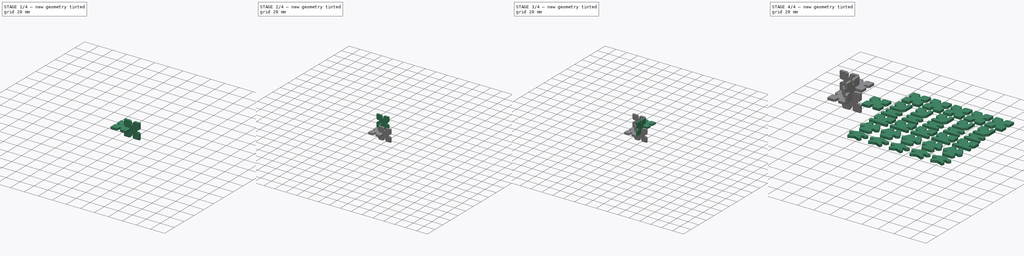
[diagram: build sequence overview — one tinted view per stage of 4, left to right]
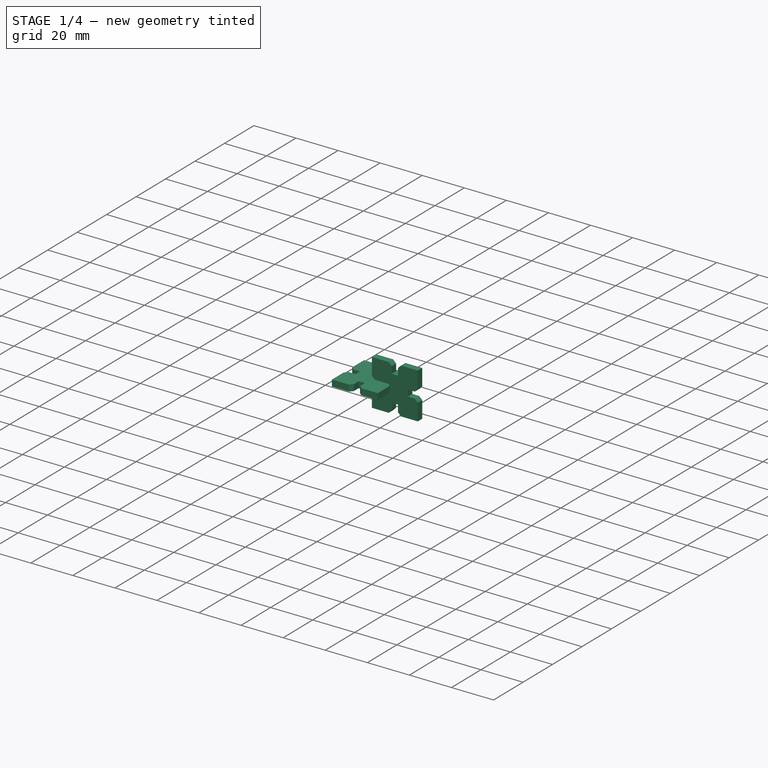
[diagram: stage 1 of 4 — iso view after this stage's code; geometry added in this stage tinted green]
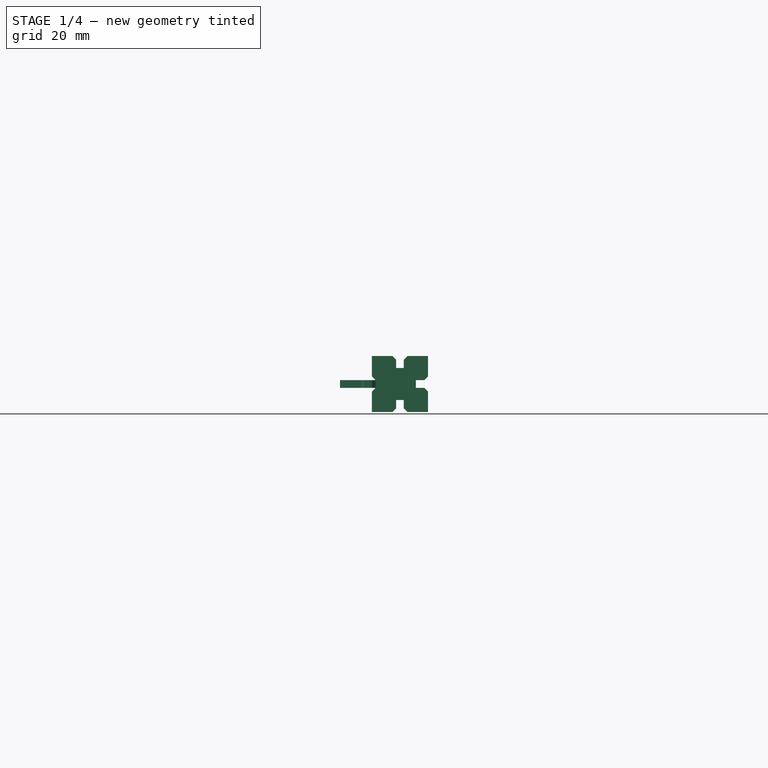
[diagram: stage 1 of 4 — front view after this stage's code; geometry added in this stage tinted green]
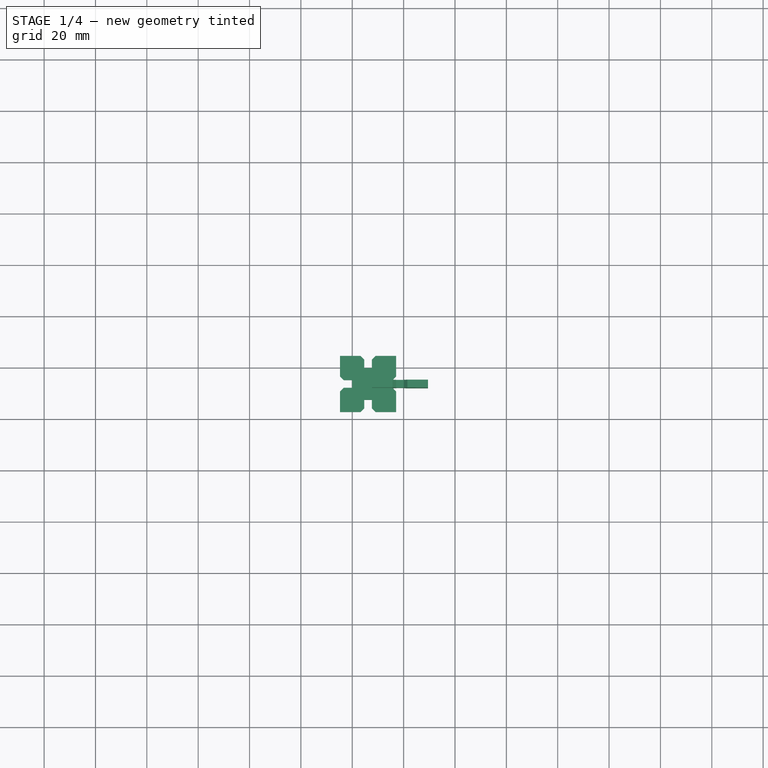
[diagram: stage 1 of 4 — top view after this stage's code; geometry added in this stage tinted green]
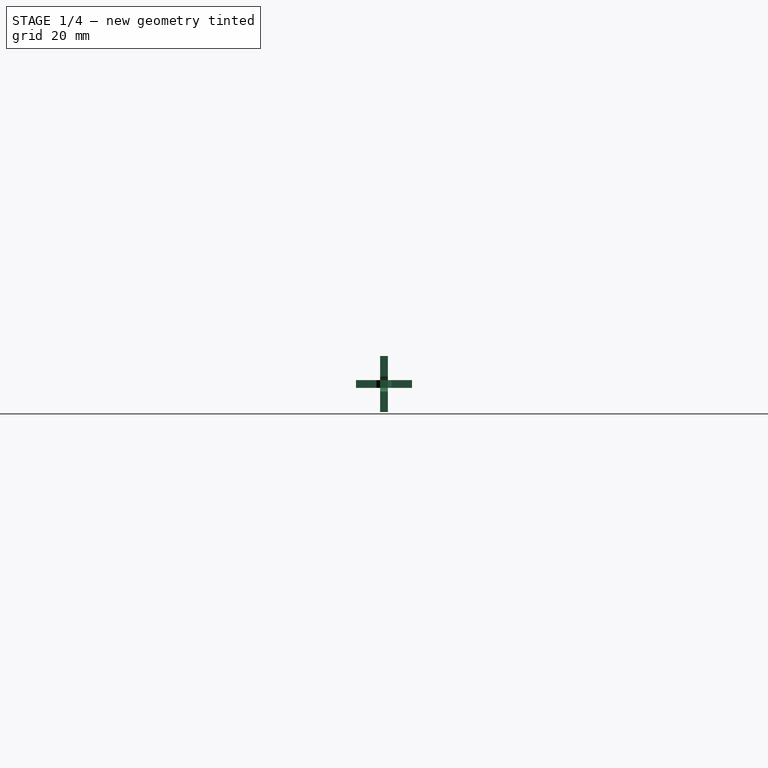
[diagram: stage 1 of 4 — right view after this stage's code; geometry added in this stage tinted green]
FCSTD DOCUMENT  (FreeCAD 0.18.3R)
Label: GIK
License: All rights reserved
LicenseURL: http://en.wikipedia.org/wiki/All_rights_reserved
objects: App::FeaturePython×10, Part::FeaturePython×7, Sketcher::SketchObject×2, Part::Extrusion×2, Spreadsheet::Sheet×1, Part::Compound×1
note: 12 computed .brp shape members not serialized (recipe doc carries the construction recipe); baked Part::Feature solids carry a one-line shape summary decoded from their .brp

FEATURE [App::FeaturePython] centerOfMass_003  label="centerOfMass_003__GIK_004"  # a2plus constraint (typed FeaturePython)
  Object1 = b_GIK_001_002
  Object2 = b_GIK_001_003
  ParentTreeObject = -> b_GIK_001_002
  SubElement1 = Face18
  SubElement2 = Face11
  Type = CenterOfMass
  directionConstraint = 1
  lockRotation = false
  offset = 0
FEATURE [App::FeaturePython] centerOfMass_003_mirror  label="centerOfMass_003__GIK_003"  # a2plus constraint (typed FeaturePython)
  Object1 = b_GIK_001_002
  Object2 = b_GIK_001_003
  ParentTreeObject = -> b_GIK_001_003
  SubElement1 = Face18
  SubElement2 = Face11
  Type = CenterOfMass
  directionConstraint = 1
  lockRotation = false
  offset = 0
FEATURE [Part::FeaturePython] b_GIK_001_004  label="GIK_005"  # a2plus imported part (geometry in sourceFile) (typed FeaturePython)
  Placement = pos=(-40,31.117,-34.6363) rot=(1,0,0;1.5708rad)
  a2p_Version = V0.1
  fixedPosition = false
  sourceFile = ./GIK.FCStd
  sourcePart = part
  subassemblyImport = false
  timeLastImport = 1.56817e+09
  updateColors = true
FEATURE [App::FeaturePython] centerOfMass_004  label="centerOfMass_004__GIK_002"  # a2plus constraint (typed FeaturePython)
  Object1 = b_GIK_001_004
  Object2 = b_GIK_001_001
  ParentTreeObject = -> b_GIK_001_004
  SubElement1 = Face4
  SubElement2 = Face25
  Type = CenterOfMass
  directionConstraint = 0
  lockRotation = false
  offset = 0
FEATURE [App::FeaturePython] centerOfMass_004_mirror  label="centerOfMass_004__GIK_005"  # a2plus constraint (typed FeaturePython)
  Object1 = b_GIK_001_004
  Object2 = b_GIK_001_001
  ParentTreeObject = -> b_GIK_001_001
  SubElement1 = Face4
  SubElement2 = Face25
  Type = CenterOfMass
  directionConstraint = 0
  lockRotation = false
  offset = 0
FEATURE [Part::FeaturePython] b_GIK_001_005  label="GIK_006"  # a2plus imported part (geometry in sourceFile) (typed FeaturePython)
  Placement = pos=(-52.4142,13.8949,-12.4142) rot=(0,0,1;0rad)
  a2p_Version = V0.1
  fixedPosition = false
  sourceFile = ./GIK.FCStd
  sourcePart = part
  subassemblyImport = false
  timeLastImport = 1.56817e+09
  updateColors = true
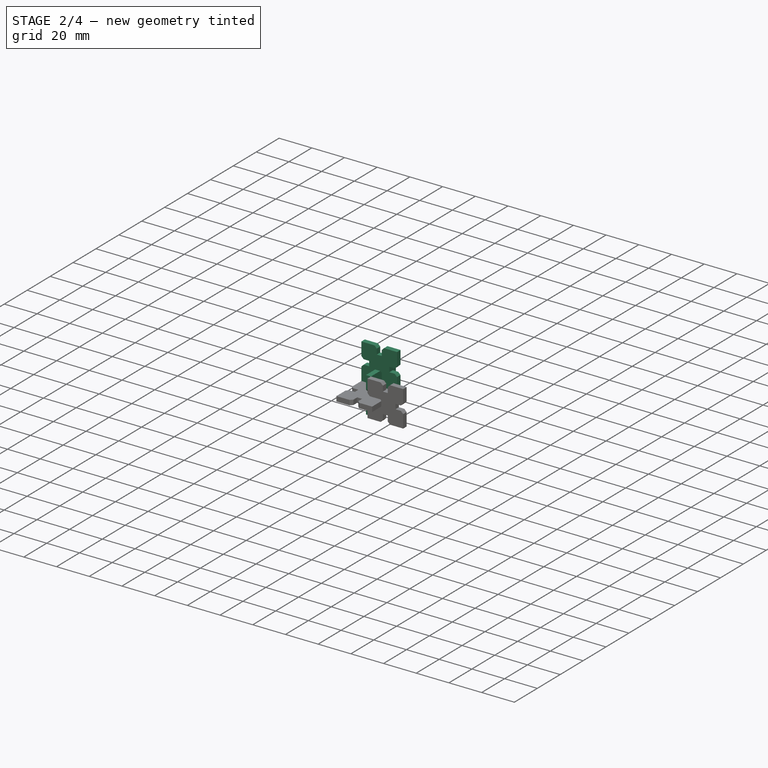
[diagram: stage 2 of 4 — iso view after this stage's code; geometry added in this stage tinted green]
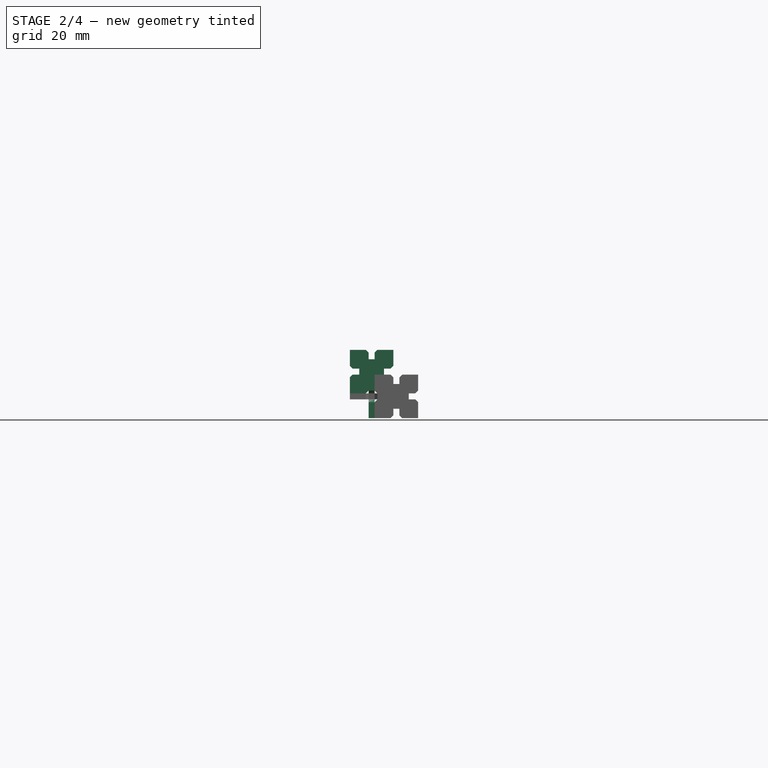
[diagram: stage 2 of 4 — front view after this stage's code; geometry added in this stage tinted green]
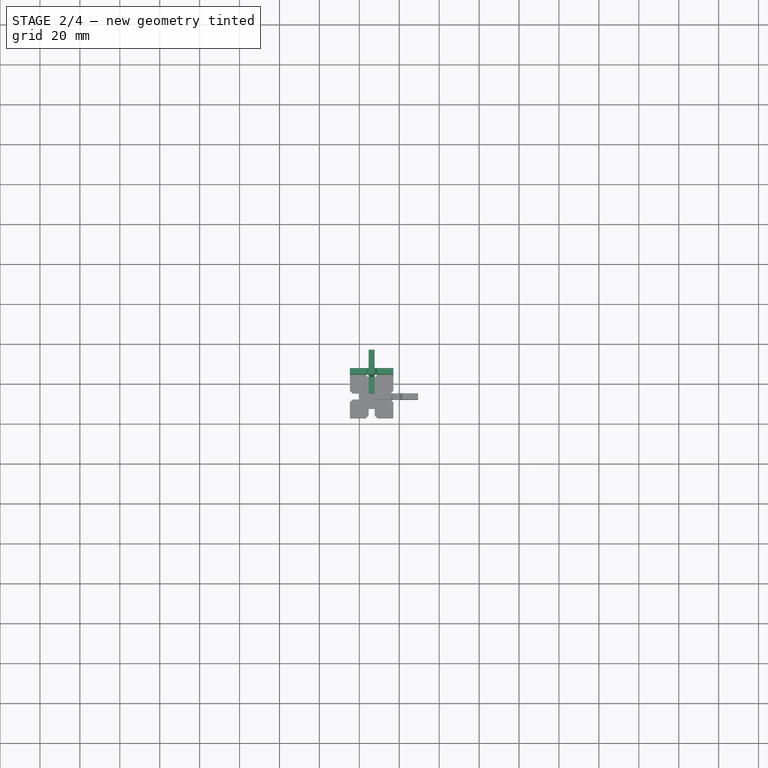
[diagram: stage 2 of 4 — top view after this stage's code; geometry added in this stage tinted green]
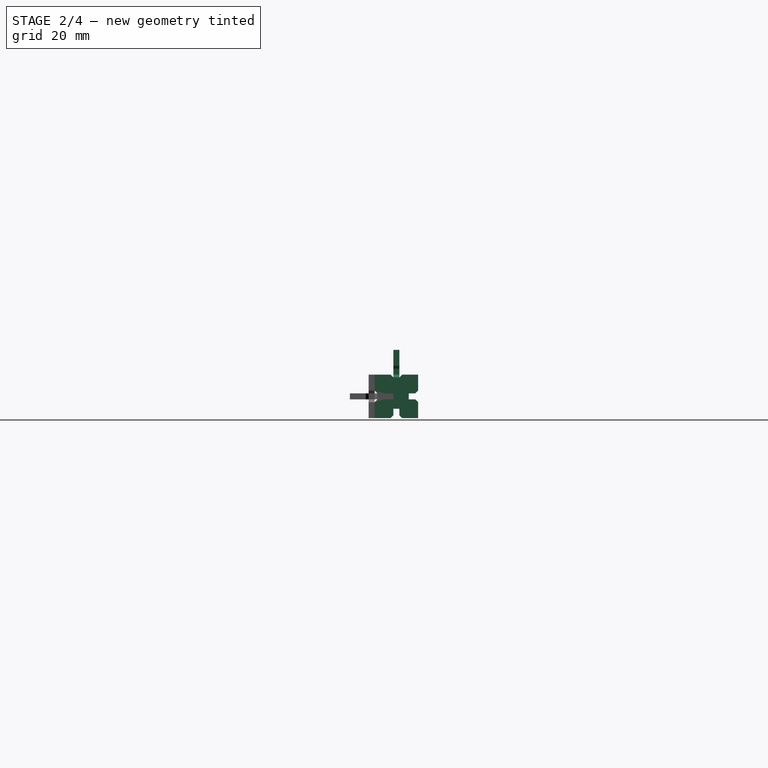
[diagram: stage 2 of 4 — right view after this stage's code; geometry added in this stage tinted green]
FEATURE [App::FeaturePython] centerOfMass_001  label="centerOfMass_001__GIK_001"  # a2plus constraint (typed FeaturePython)
  Object1 = b_GIK_001_001
  Object2 = b_GIK_001_
  ParentTreeObject = -> b_GIK_001_001
  SubElement1 = Face4
  SubElement2 = Face18
  Type = CenterOfMass
  directionConstraint = 0
  lockRotation = false
  offset = 0
FEATURE [App::FeaturePython] centerOfMass_001_mirror  label="centerOfMass_001__GIK_002"  # a2plus constraint (typed FeaturePython)
  Object1 = b_GIK_001_001
  Object2 = b_GIK_001_
  ParentTreeObject = -> b_GIK_001_
  SubElement1 = Face4
  SubElement2 = Face18
  Type = CenterOfMass
  directionConstraint = 0
  lockRotation = false
  offset = 0
FEATURE [Part::FeaturePython] b_GIK_001_002  label="GIK_003"  # a2plus imported part (geometry in sourceFile) (typed FeaturePython)
  Placement = pos=(-52.4142,43.5312,-22.2221) rot=(1,0,0;1.5708rad)
  a2p_Version = V0.1
  fixedPosition = false
  sourceFile = ./GIK.FCStd
  sourcePart = part
  subassemblyImport = false
  timeLastImport = 1.56817e+09
  updateColors = true
FEATURE [App::FeaturePython] centerOfMass_002  label="centerOfMass_002__GIK_001"  # a2plus constraint (typed FeaturePython)
  Object1 = b_GIK_001_002
  Object2 = b_GIK_001_
  ParentTreeObject = -> b_GIK_001_002
  SubElement1 = Face11
  SubElement2 = Face25
  Type = CenterOfMass
  directionConstraint = 1
  lockRotation = false
  offset = 0
FEATURE [App::FeaturePython] centerOfMass_002_mirror  label="centerOfMass_002__GIK_003"  # a2plus constraint (typed FeaturePython)
  Object1 = b_GIK_001_002
  Object2 = b_GIK_001_
  ParentTreeObject = -> b_GIK_001_
  SubElement1 = Face11
  SubElement2 = Face25
  Type = CenterOfMass
  directionConstraint = 1
  lockRotation = false
  offset = 0
FEATURE [Part::FeaturePython] b_GIK_001_003  label="GIK_004"  # a2plus imported part (geometry in sourceFile) (typed FeaturePython)
  Placement = pos=(-156.352,26.3091,86.5232) rot=(0,-1,0;1.5708rad)
  a2p_Version = V0.1
  fixedPosition = false
  sourceFile = ./GIK.FCStd
  sourcePart = part
  subassemblyImport = false
  timeLastImport = 1.56817e+09
  updateColors = true
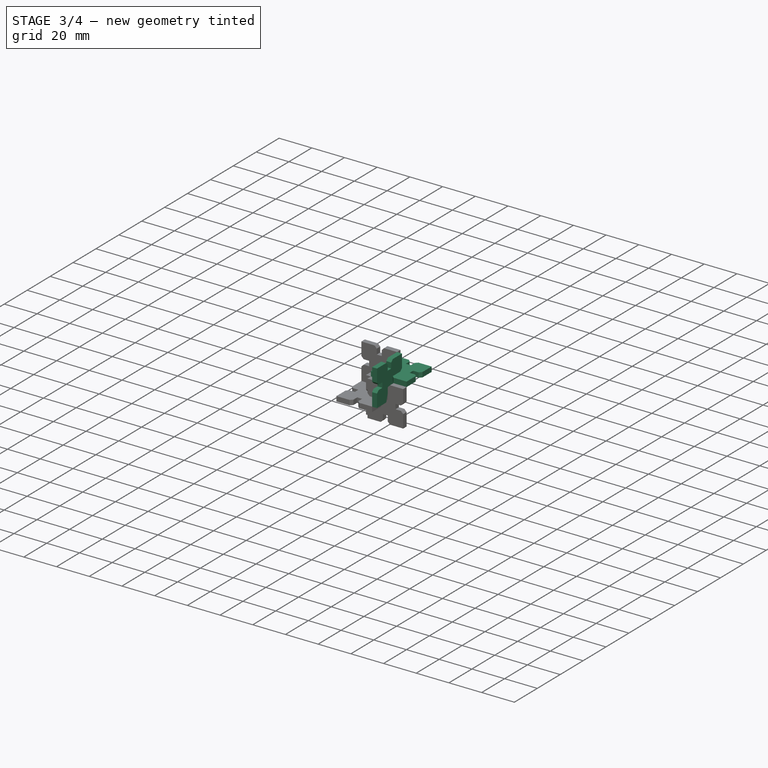
[diagram: stage 3 of 4 — iso view after this stage's code; geometry added in this stage tinted green]
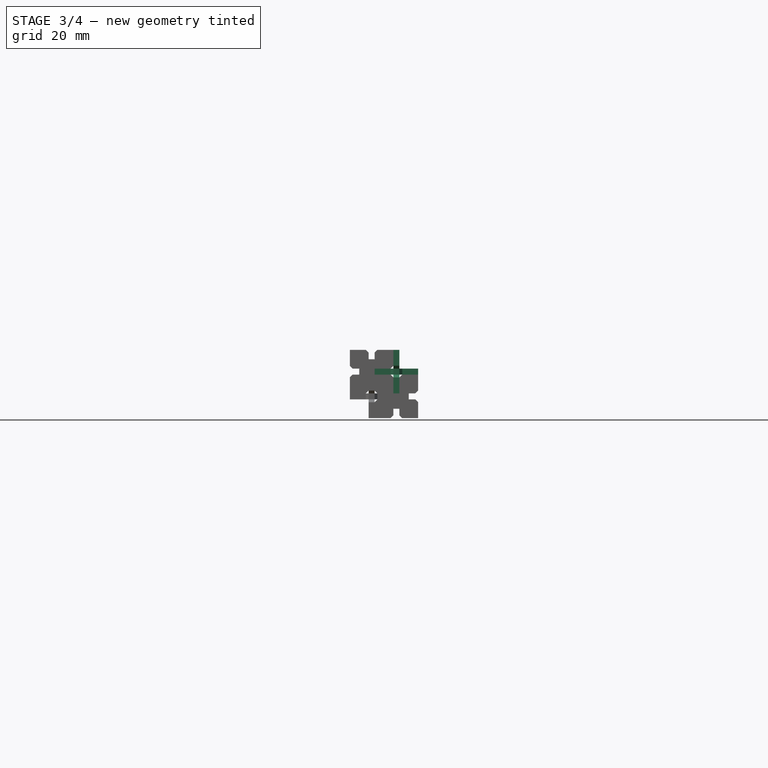
[diagram: stage 3 of 4 — front view after this stage's code; geometry added in this stage tinted green]
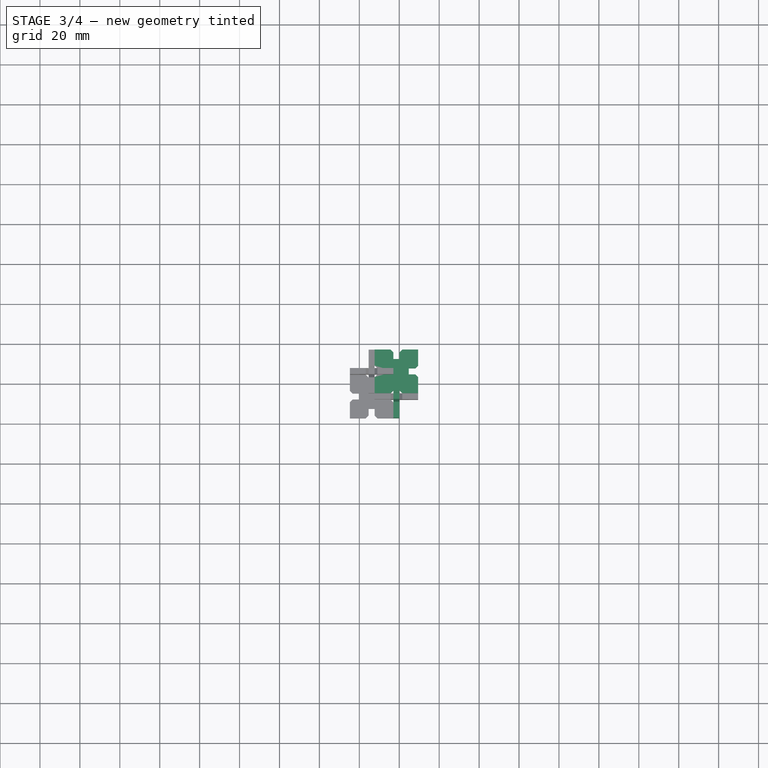
[diagram: stage 3 of 4 — top view after this stage's code; geometry added in this stage tinted green]
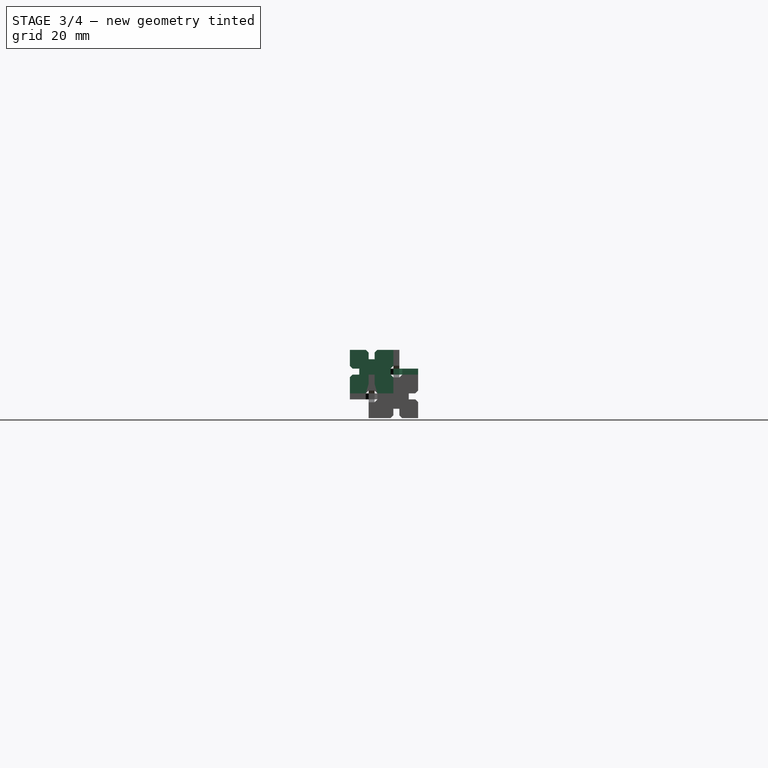
[diagram: stage 3 of 4 — right view after this stage's code; geometry added in this stage tinted green]
FEATURE [Part::FeaturePython] b_GIK_001_  label="GIK_001"  # a2plus imported part (geometry in sourceFile) (typed FeaturePython)
  Placement = pos=(-40,26.3091,-8.7257e-08) rot=(0,0,1;0rad)
  a2p_Version = V0.1
  fixedPosition = true
  sourceFile = ./GIK.FCStd
  sourcePart = part
  subassemblyImport = false
  timeLastImport = 1.56817e+09
  updateColors = true
FEATURE [Part::FeaturePython] b_GIK_001_001  label="GIK_002"  # a2plus imported part (geometry in sourceFile) (typed FeaturePython)
  Placement = pos=(-143.937,13.8949,98.9374) rot=(0,-1,0;1.5708rad)
  a2p_Version = V0.1
  fixedPosition = false
  sourceFile = ./GIK.FCStd
  sourcePart = part
  subassemblyImport = false
  timeLastImport = 1.56817e+09
  updateColors = true
FEATURE [App::FeaturePython] centerOfMass_005  label="centerOfMass_005__GIK_006"  # a2plus constraint (typed FeaturePython)
  Object1 = b_GIK_001_003
  Object2 = b_GIK_001_005
  ParentTreeObject = -> b_GIK_001_003
  SubElement1 = Face18
  SubElement2 = Face4
  Type = CenterOfMass
  directionConstraint = 0
  lockRotation = false
  offset = 0
FEATURE [App::FeaturePython] centerOfMass_005_mirror  label="centerOfMass_005__GIK_004"  # a2plus constraint (typed FeaturePython)
  Object1 = b_GIK_001_003
  Object2 = b_GIK_001_005
  ParentTreeObject = -> b_GIK_001_005
  SubElement1 = Face18
  SubElement2 = Face4
  Type = CenterOfMass
  directionConstraint = 0
  lockRotation = false
  offset = 0
FEATURE [Part::Compound] Compound  label="GIKs"
  Links = -> [b_GIK_001_,b_GIK_001_004,b_GIK_001_005,b_GIK_001_003,b_GIK_001_002,b_GIK_001_001]
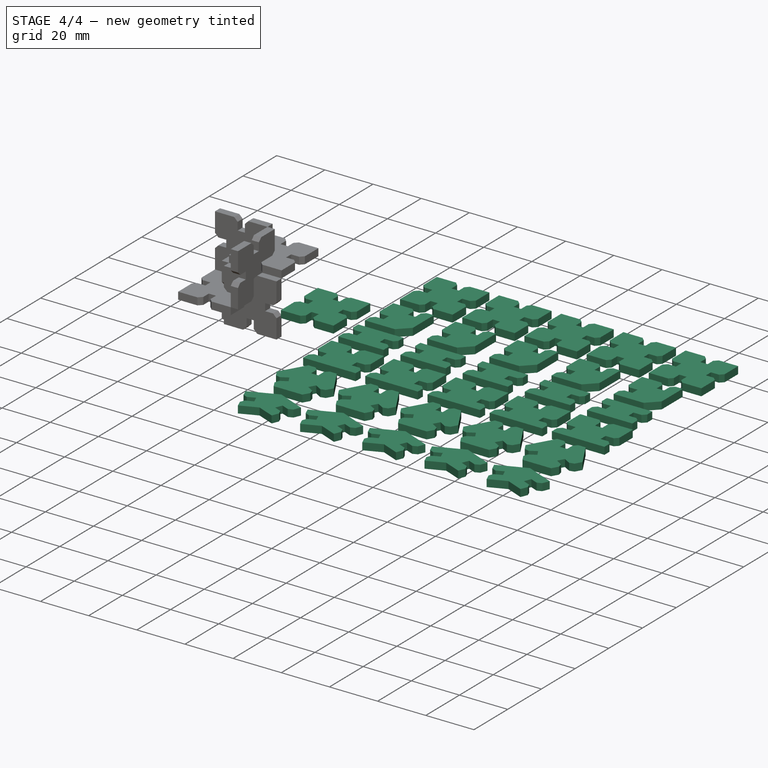
[diagram: stage 4 of 4 — iso view after this stage's code; geometry added in this stage tinted green]
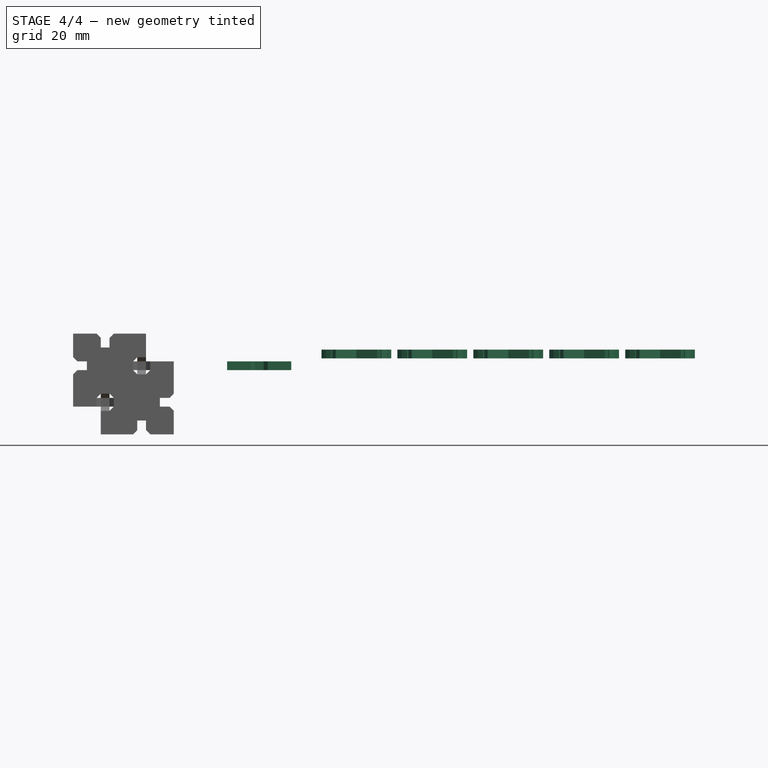
[diagram: stage 4 of 4 — front view after this stage's code; geometry added in this stage tinted green]
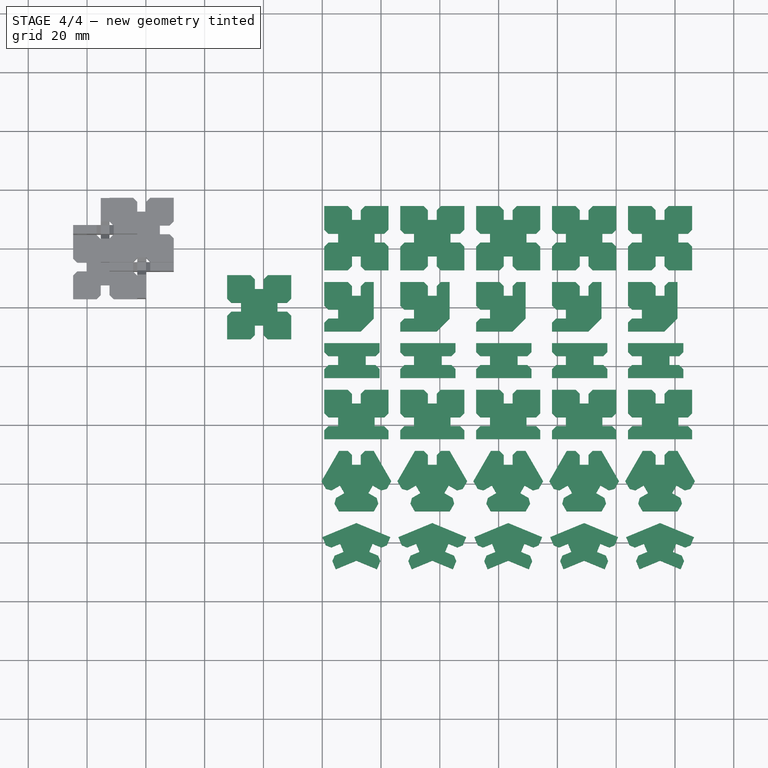
[diagram: stage 4 of 4 — top view after this stage's code; geometry added in this stage tinted green]
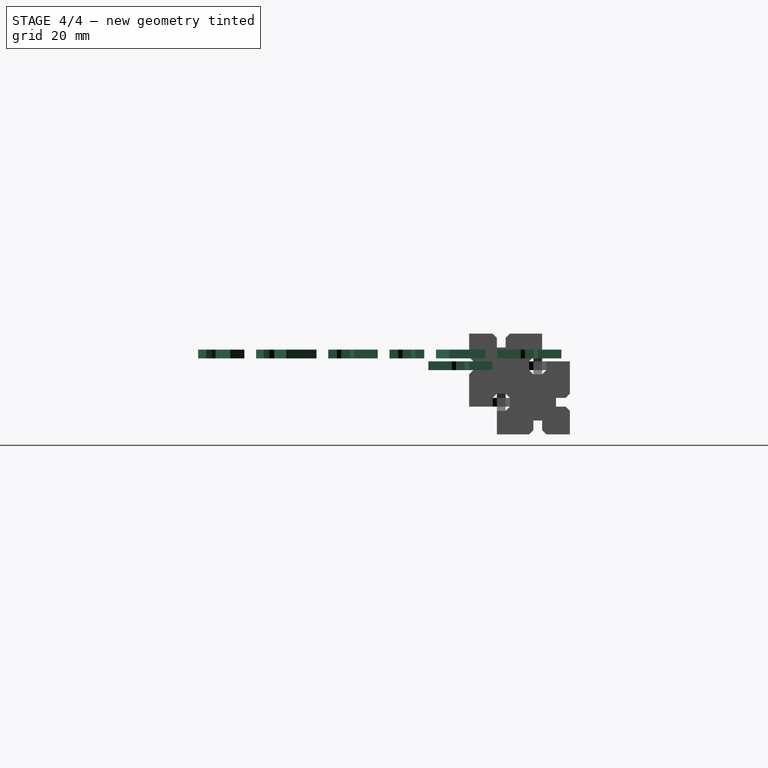
[diagram: stage 4 of 4 — right view after this stage's code; geometry added in this stage tinted green]
FEATURE [Sketcher::SketchObject] Sketch  label="parts"
  expr: Constraints[84] = Spreadsheet.spacing
  expr: Constraints[250] = Spreadsheet.spacing
  expr: Constraints[396] = Spreadsheet.chamfer
  expr: Constraints[223] = Spreadsheet.half
  expr: Constraints[137] = Spreadsheet.spacing
  expr: Constraints[416] = Spreadsheet.half
  expr: Constraints[427] = Spreadsheet.spacing
  expr: Constraints[222] = Spreadsheet.half
  expr: Constraints[10] = Spreadsheet.thickness
  expr: Constraints[4] = Spreadsheet.chamfer
  expr: Constraints[372] = Spreadsheet.whole
  expr: Constraints[364] = Spreadsheet.whole
  expr: Constraints[197] = Spreadsheet.whole
  expr: Constraints[360] = 45
  expr: Constraints[358] = Spreadsheet.thickness
  expr: Constraints[7] = Spreadsheet.depth
  expr: Constraints[184] = Spreadsheet.thickness
  expr: Constraints[316] = Spreadsheet.spacing
  expr: Constraints[224] = Spreadsheet.half
  expr: Constraints[415] = Spreadsheet.half
  expr: Constraints[1] = Spreadsheet.length
  sketch-geometry (149):
    g0: LineSegment StartX=-79.3043 StartY=54.0711 StartZ=0 EndX=-71.3043 EndY=54.0711 EndZ=0
    g1: LineSegment StartX=-71.3043 StartY=54.0711 StartZ=0 EndX=-69.89 EndY=52.6569 EndZ=0
    g2: LineSegment StartX=-69.89 StartY=52.6569 StartZ=0 EndX=-69.89 EndY=49.364 EndZ=0
    g3: LineSegment StartX=-69.89 StartY=49.364 StartZ=0 EndX=-66.89 EndY=49.364 EndZ=0
    g4: LineSegment StartX=-66.89 StartY=49.364 StartZ=0 EndX=-66.89 EndY=52.6569 EndZ=0
    g5: LineSegment StartX=-66.89 StartY=52.6569 StartZ=0 EndX=-65.4758 EndY=54.0711 EndZ=0
    g6: LineSegment StartX=-65.4758 StartY=54.0711 StartZ=0 EndX=-57.4758 EndY=54.0711 EndZ=0
    g7: LineSegment StartX=-57.4758 StartY=54.0711 StartZ=0 EndX=-57.4758 EndY=46.0711 EndZ=0
    g8: LineSegment StartX=-58.89 StartY=44.6569 StartZ=0 EndX=-57.4758 EndY=46.0711 EndZ=0
    g9: LineSegment StartX=-62.1829 StartY=44.6569 StartZ=0 EndX=-58.89 EndY=44.6569 EndZ=0
    g10: LineSegment StartX=-62.1829 StartY=41.6569 StartZ=0 EndX=-62.1829 EndY=44.6569 EndZ=0
    g11: LineSegment StartX=-62.1829 StartY=41.6569 StartZ=0 EndX=-58.89 EndY=41.6569 EndZ=0
    g12: LineSegment StartX=-57.4758 StartY=40.2426 StartZ=0 EndX=-58.89 EndY=41.6569 EndZ=0
    g13: LineSegment StartX=-57.4758 StartY=32.2426 StartZ=0 EndX=-57.4758 EndY=40.2426 EndZ=0
    g14: LineSegment StartX=-65.4758 StartY=32.2426 StartZ=0 EndX=-57.4758 EndY=32.2426 EndZ=0
    g15: LineSegment StartX=-66.89 StartY=33.6569 StartZ=0 EndX=-65.4758 EndY=32.2426 EndZ=0
    g16: LineSegment StartX=-66.89 StartY=36.9497 StartZ=0 EndX=-66.89 EndY=33.6569 EndZ=0
    g17: LineSegment StartX=-69.89 StartY=36.9497 StartZ=0 EndX=-66.89 EndY=36.9497 EndZ=0
    g18: LineSegment StartX=-69.89 StartY=36.9497 StartZ=0 EndX=-69.89 EndY=33.6569 EndZ=0
    g19: LineSegment StartX=-71.3043 StartY=32.2426 StartZ=0 EndX=-69.89 EndY=33.6569 EndZ=0
    g20: LineSegment StartX=-79.3043 StartY=32.2426 StartZ=0 EndX=-71.3043 EndY=32.2426 EndZ=0
    g21: LineSegment StartX=-79.3043 StartY=40.2426 StartZ=0 EndX=-79.3043 EndY=32.2426 EndZ=0
    g22: LineSegment StartX=-79.3043 StartY=40.2426 StartZ=0 EndX=-77.89 EndY=41.6569 EndZ=0
    g23: LineSegment StartX=-77.89 StartY=41.6569 StartZ=0 EndX=-74.5972 EndY=41.6569 EndZ=0
    g24: LineSegment StartX=-74.5972 StartY=44.6569 StartZ=0 EndX=-74.5972 EndY=41.6569 EndZ=0
    g25: LineSegment StartX=-77.89 StartY=44.6569 StartZ=0 EndX=-74.5972 EndY=44.6569 EndZ=0
    g26: LineSegment StartX=-79.3043 StartY=46.0711 StartZ=0 EndX=-77.89 EndY=44.6569 EndZ=0
    g27: LineSegment StartX=-79.3043 StartY=54.0711 StartZ=0 EndX=-79.3043 EndY=46.0711 EndZ=0
    g28: GeomPoint X=-79.3043 Y=28.2426 Z=0
    g29: LineSegment StartX=-79.3043 StartY=28.2426 StartZ=0 EndX=-71.3043 EndY=28.2426 EndZ=0
    g30: LineSegment StartX=-69.89 StartY=26.8284 StartZ=0 EndX=-71.3043 EndY=28.2426 EndZ=0
    g31: LineSegment StartX=-69.89 StartY=26.8284 StartZ=0 EndX=-69.89 EndY=23.5355 EndZ=0
    g32: LineSegment StartX=-66.89 StartY=23.5355 StartZ=0 EndX=-69.89 EndY=23.5355 EndZ=0
    g33: LineSegment StartX=-66.89 StartY=26.8284 StartZ=0 EndX=-66.89 EndY=23.5355 EndZ=0
    g34: LineSegment StartX=-65.4758 StartY=28.2426 StartZ=0 EndX=-66.89 EndY=26.8284 EndZ=0
    g35: LineSegment StartX=-62.4758 StartY=28.2426 StartZ=0 EndX=-65.4758 EndY=28.2426 EndZ=0
    g36: LineSegment StartX=-79.3043 StartY=28.2426 StartZ=0 EndX=-79.3043 EndY=20.2426 EndZ=0
    g37: LineSegment StartX=-77.89 StartY=18.8284 StartZ=0 EndX=-79.3043 EndY=20.2426 EndZ=0
    g38: LineSegment StartX=-74.5972 StartY=18.8284 StartZ=0 EndX=-77.89 EndY=18.8284 EndZ=0
    g39: LineSegment StartX=-74.5972 StartY=15.8284 StartZ=0 EndX=-74.5972 EndY=18.8284 EndZ=0
    g40: LineSegment StartX=-77.89 StartY=15.8284 StartZ=0 EndX=-74.5972 EndY=15.8284 EndZ=0
    g41: LineSegment StartX=-79.3043 StartY=14.4142 StartZ=0 EndX=-77.89 EndY=15.8284 EndZ=0
    g42: LineSegment StartX=-79.3043 StartY=11.4142 StartZ=0 EndX=-79.3043 EndY=14.4142 EndZ=0
    g43: LineSegment StartX=-79.3043 StartY=11.4142 StartZ=0 EndX=-66.89 EndY=11.4142 EndZ=0
    g44: LineSegment StartX=-62.4758 StartY=15.8284 StartZ=0 EndX=-62.4758 EndY=28.2426 EndZ=0
    g45: LineSegment StartX=-60.4758 StartY=7.41421 StartZ=0 EndX=-60.4758 EndY=4.41421 EndZ=0
    g46: LineSegment StartX=-60.4758 StartY=-4.41421 StartZ=0 EndX=-79.3043 EndY=-4.41421 EndZ=0
    g47: LineSegment StartX=-79.3043 StartY=-4.41421 StartZ=0 EndX=-79.3043 EndY=-1.41421 EndZ=0
    g48: LineSegment StartX=-77.89 StartY=3 StartZ=0 EndX=-74.5972 EndY=3 EndZ=0
    g49: LineSegment StartX=-74.5972 StartY=3 StartZ=0 EndX=-74.5972 EndY=0 EndZ=0
    g50: LineSegment StartX=-74.5972 StartY=0 StartZ=0 EndX=-77.89 EndY=0 EndZ=0
    g51: LineSegment StartX=-61.89 StartY=3 StartZ=0 EndX=-65.1829 EndY=3 EndZ=0
    g52: LineSegment StartX=-65.1829 StartY=3 StartZ=0 EndX=-65.1829 EndY=0 EndZ=0
    g53: LineSegment StartX=-65.1829 StartY=0 StartZ=0 EndX=-61.89 EndY=0 EndZ=0
    g54: LineSegment StartX=-79.3043 StartY=4.41421 StartZ=0 EndX=-79.3043 EndY=7.41421 EndZ=0
    g55: LineSegment StartX=-60.4758 StartY=-1.41421 StartZ=0 EndX=-60.4758 EndY=-4.41421 EndZ=0
    g56: LineSegment StartX=-79.3043 StartY=4.41421 StartZ=0 EndX=-77.89 EndY=3 EndZ=0
    g57: LineSegment StartX=-79.3043 StartY=-1.41421 StartZ=0 EndX=-77.89 EndY=0 EndZ=0
    g58: LineSegment StartX=-61.89 StartY=3 StartZ=0 EndX=-60.4758 EndY=4.41421 EndZ=0
    g59: LineSegment StartX=-61.89 StartY=0 StartZ=0 EndX=-60.4758 EndY=-1.41421 EndZ=0
    g60: LineSegment StartX=-69.89 StartY=7.41421 StartZ=0 EndX=-79.3043 EndY=7.41421 EndZ=0
    g61: LineSegment StartX=-69.89 StartY=7.41421 StartZ=0 EndX=-60.4758 EndY=7.41421 EndZ=0
    g62: LineSegment [constr] StartX=-69.89 StartY=-38.6569 StartZ=0 EndX=-66.89 EndY=-38.6569 EndZ=0
    g63: LineSegment [constr] StartX=-66.89 StartY=-38.6569 StartZ=0 EndX=-68.39 EndY=-41.2549 EndZ=0
    g64: LineSegment [constr] StartX=-69.89 StartY=-38.6569 StartZ=0 EndX=-68.39 EndY=-41.2549 EndZ=0
    g65: LineSegment [constr] StartX=-69.89 StartY=-29.2426 StartZ=0 EndX=-66.89 EndY=-29.2426 EndZ=0
    g66: LineSegment [constr] StartX=-66.89 StartY=-29.2426 StartZ=0 EndX=-66.89 EndY=-38.6569 EndZ=0
    g67: LineSegment [constr] StartX=-66.89 StartY=-38.6569 StartZ=0 EndX=-69.89 EndY=-38.6569 EndZ=0
    g68: LineSegment [constr] StartX=-69.89 StartY=-38.6569 StartZ=0 EndX=-69.89 EndY=-29.2426 EndZ=0
    g69: LineSegment [constr] StartX=-78.043 StartY=-43.364 StartZ=0 EndX=-69.89 EndY=-38.6569 EndZ=0
    g70: LineSegment [constr] StartX=-76.543 StartY=-45.962 StartZ=0 EndX=-68.39 EndY=-41.2549 EndZ=0
    g71: LineSegment [constr] StartX=-78.043 StartY=-43.364 StartZ=0 EndX=-76.543 EndY=-45.962 EndZ=0
    g72: LineSegment [constr] StartX=-60.2371 StartY=-45.962 StartZ=0 EndX=-68.39 EndY=-41.2549 EndZ=0
    g73: LineSegment [constr] StartX=-58.7371 StartY=-43.364 StartZ=0 EndX=-66.89 EndY=-38.6569 EndZ=0
    g74: LineSegment [constr] StartX=-60.2371 StartY=-45.962 StartZ=0 EndX=-58.7371 EndY=-43.364 EndZ=0
    g75: LineSegment StartX=-69.89 StartY=-33.9497 StartZ=0 EndX=-66.89 EndY=-33.9497 EndZ=0
    g76: LineSegment StartX=-73.9665 StartY=-41.0104 StartZ=0 EndX=-72.4665 EndY=-43.6085 EndZ=0
    g77: LineSegment StartX=-64.3136 StartY=-43.6085 StartZ=0 EndX=-62.8136 EndY=-41.0104 EndZ=0
    g78: LineSegment StartX=-76.8182 StartY=-42.6569 StartZ=0 EndX=-73.9665 EndY=-41.0104 EndZ=0
    g79: LineSegment StartX=-75.3182 StartY=-45.2549 StartZ=0 EndX=-72.4665 EndY=-43.6085 EndZ=0
    g80: LineSegment StartX=-62.8136 StartY=-41.0104 StartZ=0 EndX=-59.9618 EndY=-42.6569 EndZ=0
    g81: LineSegment StartX=-69.89 StartY=-30.6569 StartZ=0 EndX=-69.89 EndY=-33.9497 EndZ=0
    g82: LineSegment StartX=-66.89 StartY=-30.6569 StartZ=0 EndX=-66.89 EndY=-33.9497 EndZ=0
    g83: LineSegment StartX=-80.2501 StartY=-39.5411 StartZ=0 EndX=-78.7501 EndY=-42.1392 EndZ=0
    g84: LineSegment StartX=-74.3359 StartY=-49.7849 StartZ=0 EndX=-75.8359 EndY=-47.1868 EndZ=0
    g85: LineSegment StartX=-56.53 StartY=-39.5411 StartZ=0 EndX=-58.03 EndY=-42.1392 EndZ=0
    g86: LineSegment StartX=-62.4442 StartY=-49.7849 StartZ=0 EndX=-60.9442 EndY=-47.1868 EndZ=0
    g87: LineSegment StartX=-74.3043 StartY=-29.2426 StartZ=0 EndX=-71.3043 EndY=-29.2426 EndZ=0
    g88: LineSegment StartX=-62.4758 StartY=-29.2426 StartZ=0 EndX=-65.4758 EndY=-29.2426 EndZ=0
    g89: LineSegment StartX=-64.3136 StartY=-43.6085 StartZ=0 EndX=-61.4618 EndY=-45.2549 EndZ=0
    g90: LineSegment StartX=-74.3359 StartY=-49.7849 StartZ=0 EndX=-62.4442 EndY=-49.7849 EndZ=0
    g91: LineSegment StartX=-62.4758 StartY=-29.2426 StartZ=0 EndX=-56.53 EndY=-39.5411 EndZ=0
    g92: LineSegment StartX=-80.2501 StartY=-39.5411 StartZ=0 EndX=-74.3043 EndY=-29.2426 EndZ=0
    g93: GeomPoint X=-79.3043 Y=-8.41421 Z=0
    g94: LineSegment StartX=-79.3043 StartY=-8.41421 StartZ=0 EndX=-71.3043 EndY=-8.41421 EndZ=0
    g95: LineSegment StartX=-71.3043 StartY=-8.41421 StartZ=0 EndX=-69.89 EndY=-9.82843 EndZ=0
    g96: LineSegment StartX=-69.89 StartY=-9.82843 StartZ=0 EndX=-69.89 EndY=-13.1213 EndZ=0
    g97: LineSegment StartX=-69.89 StartY=-13.1213 StartZ=0 EndX=-66.89 EndY=-13.1213 EndZ=0
    g98: LineSegment StartX=-66.89 StartY=-13.1213 StartZ=0 EndX=-66.89 EndY=-9.82843 EndZ=0
    g99: LineSegment StartX=-66.89 StartY=-9.82843 StartZ=0 EndX=-65.4758 EndY=-8.41421 EndZ=0
    g100: LineSegment StartX=-65.4758 StartY=-8.41421 StartZ=0 EndX=-57.4758 EndY=-8.41421 EndZ=0
    g101: LineSegment StartX=-79.3043 StartY=-16.4142 StartZ=0 EndX=-79.3043 EndY=-8.41421 EndZ=0
    g102: LineSegment StartX=-57.4758 StartY=-16.4142 StartZ=0 EndX=-57.4758 EndY=-8.41421 EndZ=0
    g103: LineSegment StartX=-77.89 StartY=-17.8284 StartZ=0 EndX=-79.3043 EndY=-16.4142 EndZ=0
    g104: LineSegment StartX=-58.89 StartY=-17.8284 StartZ=0 EndX=-57.4758 EndY=-16.4142 EndZ=0
    g105: LineSegment StartX=-77.89 StartY=-17.8284 StartZ=0 EndX=-74.5972 EndY=-17.8284 EndZ=0
    g106: LineSegment StartX=-62.1829 StartY=-17.8284 StartZ=0 EndX=-58.89 EndY=-17.8284 EndZ=0
    g107: LineSegment StartX=-74.5972 StartY=-20.8284 StartZ=0 EndX=-74.5972 EndY=-17.8284 EndZ=0
    g108: LineSegment StartX=-62.1829 StartY=-20.8284 StartZ=0 EndX=-62.1829 EndY=-17.8284 EndZ=0
    g109: LineSegment StartX=-77.89 StartY=-20.8284 StartZ=0 EndX=-74.5972 EndY=-20.8284 EndZ=0
    g110: LineSegment StartX=-58.89 StartY=-20.8284 StartZ=0 EndX=-62.1829 EndY=-20.8284 EndZ=0
    g111: LineSegment StartX=-79.3043 StartY=-22.2426 StartZ=0 EndX=-77.89 EndY=-20.8284 EndZ=0
    g112: LineSegment StartX=-57.4758 StartY=-22.2426 StartZ=0 EndX=-58.89 EndY=-20.8284 EndZ=0
    g113: LineSegment StartX=-79.3043 StartY=-25.2426 StartZ=0 EndX=-79.3043 EndY=-22.2426 EndZ=0
    g114: LineSegment StartX=-57.4758 StartY=-25.2426 StartZ=0 EndX=-57.4758 EndY=-22.2426 EndZ=0
    g115: LineSegment StartX=-79.3043 StartY=-25.2426 StartZ=0 EndX=-57.4758 EndY=-25.2426 EndZ=0
    g116: LineSegment StartX=-71.3043 StartY=-29.2426 StartZ=0 EndX=-69.89 EndY=-30.6569 EndZ=0
    g117: LineSegment StartX=-66.89 StartY=-30.6569 StartZ=0 EndX=-65.4758 EndY=-29.2426 EndZ=0
    g118: LineSegment StartX=-78.7501 StartY=-42.1392 StartZ=0 EndX=-76.8182 EndY=-42.6569 EndZ=0
    g119: LineSegment StartX=-75.8359 StartY=-47.1868 StartZ=0 EndX=-75.3182 EndY=-45.2549 EndZ=0
    g120: LineSegment StartX=-61.4618 StartY=-45.2549 StartZ=0 EndX=-60.9442 EndY=-47.1868 EndZ=0
    g121: LineSegment StartX=-59.9618 StartY=-42.6569 StartZ=0 EndX=-58.03 EndY=-42.1392 EndZ=0
    g122: LineSegment [constr] StartX=-69.5381 StartY=-59.0383 StartZ=0 EndX=-68.39 EndY=-61.8099 EndZ=0
    g123: LineSegment [constr] StartX=-68.39 StartY=-61.8099 StartZ=0 EndX=-67.242 EndY=-59.0383 EndZ=0
    g124: LineSegment [constr] StartX=-69.5381 StartY=-59.0383 StartZ=0 EndX=-67.242 EndY=-59.0383 EndZ=0
    g125: LineSegment [constr] StartX=-69.5381 StartY=-59.0383 StartZ=0 EndX=-78.2357 EndY=-62.641 EndZ=0
    g126: LineSegment [constr] StartX=-68.39 StartY=-61.8099 StartZ=0 EndX=-77.0876 EndY=-65.4126 EndZ=0
    g127: LineSegment [constr] StartX=-68.39 StartY=-61.8099 StartZ=0 EndX=-59.6924 EndY=-65.4126 EndZ=0
    g128: LineSegment [constr] StartX=-67.242 StartY=-59.0383 StartZ=0 EndX=-58.5444 EndY=-62.641 EndZ=0
    g129: LineSegment StartX=-79.9249 StartY=-58.5628 StartZ=0 EndX=-78.7769 EndY=-61.3344 EndZ=0
    g130: LineSegment StartX=-76.5464 StartY=-66.7192 StartZ=0 EndX=-75.3984 EndY=-69.4908 EndZ=0
    g131: LineSegment StartX=-60.2336 StartY=-66.7192 StartZ=0 EndX=-61.3817 EndY=-69.4908 EndZ=0
    g132: LineSegment StartX=-58.0032 StartY=-61.3344 StartZ=0 EndX=-56.8551 EndY=-58.5628 EndZ=0
    g133: LineSegment StartX=-78.7769 StartY=-61.3344 StartZ=0 EndX=-76.9291 EndY=-62.0998 EndZ=0
    g134: LineSegment StartX=-76.5464 StartY=-66.7192 StartZ=0 EndX=-75.7811 EndY=-64.8714 EndZ=0
    g135: LineSegment StartX=-60.2336 StartY=-66.7192 StartZ=0 EndX=-60.999 EndY=-64.8714 EndZ=0
    g136: LineSegment StartX=-58.0032 StartY=-61.3344 StartZ=0 EndX=-59.851 EndY=-62.0998 EndZ=0
    g137: LineSegment StartX=-76.9291 StartY=-62.0998 StartZ=0 EndX=-73.8869 EndY=-60.8396 EndZ=0
    g138: LineSegment StartX=-73.8869 StartY=-60.8396 StartZ=0 EndX=-72.7388 EndY=-63.6113 EndZ=0
    g139: LineSegment StartX=-75.7811 StartY=-64.8714 StartZ=0 EndX=-72.7388 EndY=-63.6113 EndZ=0
    g140: LineSegment StartX=-59.851 StartY=-62.0998 StartZ=0 EndX=-62.8932 EndY=-60.8396 EndZ=0
    g141: LineSegment StartX=-62.8932 StartY=-60.8396 StartZ=0 EndX=-64.0412 EndY=-63.6113 EndZ=0
    g142: LineSegment StartX=-64.0412 StartY=-63.6113 StartZ=0 EndX=-60.999 EndY=-64.8714 EndZ=0
    g143: LineSegment StartX=-75.3984 StartY=-69.4908 StartZ=0 EndX=-68.39 EndY=-66.5879 EndZ=0
    g144: LineSegment StartX=-68.39 StartY=-66.5879 StartZ=0 EndX=-61.3817 EndY=-69.4908 EndZ=0
    g145: LineSegment StartX=-79.9249 StartY=-58.5628 StartZ=0 EndX=-68.39 EndY=-53.7849 EndZ=0
    g146: LineSegment StartX=-68.39 StartY=-53.7849 StartZ=0 EndX=-56.8551 EndY=-58.5628 EndZ=0
    g147: GeomPoint X=-66.89 Y=11.4142 Z=0
    g148: LineSegment StartX=-66.89 StartY=11.4142 StartZ=0 EndX=-62.4758 EndY=15.8284 EndZ=0
  constraints (436):
    c: Horizontal(g0)
    c: Distance(g0) = 8
    c: Coincident(g1,g0)
    c: Angle(g1) = -0.785398
    c: Distance(g1) = 2
    c: Coincident(g2,g1)
    c: Vertical(g2)
    c: Distance(g2) = 3.29289
    c: Coincident(g3,g2)
    c: Horizontal(g3)
    c: Distance(g3) = 3
    c: Coincident(g4,g3)
    c: Vertical(g4)
    c: Equal(g2,g4)
    c: Coincident(g5,g4)
    c: Angle(g5) = 0.785398
    c: Equal(g1,g5)
    c: Coincident(g6,g5)
    c: Horizontal(g6)
    c: Equal(g0,g6)
    c: Coincident(g7,g6)
    c: Vertical(g7)
    c: Equal(g0,g7)
    c: Coincident(g8,g7)
    c: Angle(g8) = 0.785398
    c: Equal(g1,g8)
    c: Coincident(g9,g8)
    c: Horizontal(g9)
    c: Equal(g2,g9)
    c: Coincident(g10,g9)
    c: Vertical(g10)
    c: Equal(g3,g10)
    c: Coincident(g11,g10)
    c: Horizontal(g11)
    c: Equal(g2,g11)
    c: Coincident(g12,g11)
    c: Angle(g12) = 2.35619
    c: Equal(g1,g12)
    c: Coincident(g13,g12)
    c: Vertical(g13)
    c: Equal(g0,g13)
    c: Coincident(g14,g13)
    c: Horizontal(g14)
    c: Equal(g0,g14)
    c: Coincident(g15,g14)
    c: Angle(g15) = -0.785398
    c: Equal(g1,g15)
    c: Coincident(g16,g15)
    c: Vertical(g16)
    c: Equal(g2,g16)
    c: Coincident(g17,g16)
    c: Horizontal(g17)
    c: Equal(g3,g17)
    c: Coincident(g18,g17)
    c: Vertical(g18)
    c: Equal(g2,g18)
    c: Coincident(g19,g18)
    c: Angle(g19) = 0.785398
    c: Equal(g1,g19)
    c: Coincident(g20,g19)
    c: Horizontal(g20)
    c: Equal(g0,g20)
    c: Coincident(g21,g20)
    c: Vertical(g21)
    c: Equal(g0,g21)
    c: Coincident(g22,g21)
    c: Angle(g22) = 0.785398
    c: Equal(g1,g22)
    c: Coincident(g23,g22)
    c: Horizontal(g23)
    c: Equal(g2,g23)
    c: Coincident(g24,g23)
    c: Vertical(g24)
    c: Equal(g3,g24)
    c: Coincident(g25,g24)
    c: Horizontal(g25)
    c: Equal(g2,g25)
    c: Coincident(g26,g25)
    c: Angle(g26) = -0.785398
    c: Equal(g1,g26)
    c: Coincident(g27,g26)
    c: Vertical(g27)
    c: Equal(g0,g27)
    c: Vertical(g20,g28)
    c: Distance(g20,g28) = 4
    c: Coincident(g29,g28)
    c: Horizontal(g29)
    c: Equal(g0,g29)
    c: Coincident(g30,g29)
    c: Angle(g30) = 2.35619
    c: Equal(g1,g30)
    c: Coincident(g31,g30)
    c: Vertical(g31)
    c: Equal(g2,g31)
    c: Coincident(g32,g31)
    c: Horizontal(g32)
    c: Equal(g3,g32)
    c: Coincident(g33,g32)
    c: Vertical(g33)
    c: Equal(g4,g33)
    c: Coincident(g34,g33)
    c: Angle(g34) = -2.35619
    c: Equal(g5,g34)
    c: Coincident(g35,g34)
    c: Horizontal(g35)
    c: Equal(g3,g35)
    c: Coincident(g36,g28)
    c: Vertical(g36)
    c: Equal(g0,g36)
    c: Coincident(g37,g36)
    c: Angle(g37) = 2.35619
    c: Equal(g1,g37)
    c: Coincident(g38,g37)
    c: Horizontal(g38)
    c: Equal(g2,g38)
    c: Coincident(g39,g38)
    c: Vertical(g39)
    c: Equal(g3,g39)
    c: Coincident(g40,g39)
    c: Horizontal(g40)
    c: Equal(g2,g40)
    c: Coincident(g41,g40)
    c: Angle(g41) = 0.785398
    c: Equal(g1,g41)
    c: Coincident(g42,g41)
    c: Vertical(g42)
    c: Equal(g3,g42)
    c: Coincident(g43,g42)
    c: Horizontal(g43)
    c: Coincident(g44,g35)
    c: Vertical(g44)
    c: Coincident(g55,g46)
    c: Coincident(g46,g47)
    c: Horizontal(g46)
    c: Vertical(g45)
    c: Vertical(g47)
    c: Vertical(g42,g54)
    c: Distance(g42,g54) = 4
    c: Coincident(g48,g49)
    c: Coincident(g49,g50)
    c: Horizontal(g48)
    c: Horizontal(g50)
    c: Vertical(g49)
    c: Coincident(g51,g52)
    c: Coincident(g52,g53)
    c: Horizontal(g51)
    c: Horizontal(g53)
    c: Vertical(g52)
    c: PointOnObject(g52,g-1)
    c: Tangent(g47,g54)
    c: Tangent(g45,g55)
    c: Coincident(g54,g56)
    c: Coincident(g48,g56)
    c: Coincident(g50,g57)
    c: Coincident(g47,g57)
    c: Coincident(g51,g58)
    c: Coincident(g45,g58)
    c: Coincident(g53,g59)
    c: Coincident(g55,g59)
    c: Equal(g42,g54)
    c: Equal(g54,g45)
    c: Equal(g45,g47)
    c: Equal(g47,g55)
    c: Angle(g56) = -0.785398
    c: Equal(g38,g48)
    c: Equal(g39,g49)
    c: Angle(g57) = 0.785398
    c: Equal(g37,g56)
    c: Equal(g56,g57)
    c: Angle(g58) = 0.785398
    c: Angle(g59) = -0.785398
    c: Equal(g56,g58)
    c: Equal(g57,g59)
    c: Equal(g48,g51)
    c: Coincident(g60,g54)
    c: Horizontal(g60)
    c: Vertical(g31,g60)
    c: Coincident(g61,g60)
    c: Coincident(g61,g45)
    c: Horizontal(g61)
    c: Equal(g60,g61)
    c: Coincident(g63,g62)
    c: Coincident(g64,g62)
    c: Coincident(g64,g63)
    c: Distance(g62) = 3
    c: Equal(g62,g64)
    c: Equal(g64,g63)
    c: Coincident(g65,g66)
    c: Coincident(g66,g67)
    c: Coincident(g67,g68)
    c: Coincident(g68,g65)
    c: Horizontal(g65)
    c: Horizontal(g67)
    c: Vertical(g66)
    c: Vertical(g68)
    c: Coincident(g66,g62)
    c: Coincident(g67,g62)
    c: Distance(g66) = 9.41421
    c: Coincident(g69,g62)
    c: Perpendicular(g64,g69)
    c: Equal(g66,g69)
    c: Coincident(g70,g63)
    c: Equal(g69,g70)
    c: Coincident(g71,g69)
    c: Coincident(g71,g70)
    c: Equal(g71,g64)
    c: Coincident(g72,g63)
    c: Coincident(g73,g62)
    c: Perpendicular(g72,g63)
    c: Coincident(g72,g74)
    c: Coincident(g73,g74)
    c: Equal(g63,g74)
    c: Equal(g72,g73)
    c: Equal(g72,g70)
    c: PointOnObject(g75,g68)
    c: PointOnObject(g75,g66)
    c: Horizontal(g75)
    c: PointOnObject(g76,g69)
    c: PointOnObject(g77,g72)
    c: PointOnObject(g77,g73)
    c: Parallel(g71,g76)
    c: Parallel(g77,g74)
    c: Distance(g62,g75) = 4.70711
    c: Distance(g76,g63) = 4.70711
    c: Distance(g77,g62) = 4.70711
    c: Coincident(g78,g76)
    c: Coincident(g79,g76)
    c: Coincident(g80,g77)
    c: Coincident(g81,g75)
    c: Coincident(g82,g75)
    c: Perpendicular(g78,g83)
    c: Equal(g76,g83)
    c: Perpendicular(g84,g79)
    c: Perpendicular(g86,g72)
    c: Coincident(g89,g77)
    c: Perpendicular(g85,g80)
    c: Perpendicular(g81,g87)
    c: Perpendicular(g82,g88)
    c: Equal(g62,g87)
    c: Equal(g87,g88)
    c: Equal(g77,g85)
    c: Equal(g77,g86)
    c: Coincident(g90,g84)
    c: Coincident(g90,g86)
    c: Coincident(g91,g88)
    c: Coincident(g91,g85)
    c: Coincident(g92,g83)
    c: Coincident(g92,g87)
    c: Vertical(g31,g65)
    c: Vertical(g46,g93)
    c: Distance(g46,g93) = 4
    c: Coincident(g94,g93)
    c: Horizontal(g94)
    c: Equal(g29,g94)
    c: Coincident(g95,g94)
    c: Equal(g30,g95)
    c: Angle(g95) = -0.785398
    c: Coincident(g96,g95)
    c: Vertical(g96)
    c: Equal(g31,g96)
    c: Coincident(g97,g96)
    c: Horizontal(g97)
    c: Equal(g32,g97)
    c: Coincident(g98,g97)
    c: Vertical(g98)
    c: Equal(g96,g98)
    c: Coincident(g99,g98)
    c: Angle(g99) = 0.785398
    c: Equal(g95,g99)
    c: Coincident(g100,g99)
    c: Horizontal(g100)
    c: Equal(g94,g100)
    c: Coincident(g101,g93)
    c: Vertical(g101)
    c: Coincident(g102,g100)
    c: Vertical(g102)
    c: Equal(g36,g101)
    c: Equal(g101,g102)
    c: Coincident(g103,g101)
    c: Coincident(g104,g102)
    c: Angle(g103) = 2.35619
    c: Angle(g104) = 0.785398
    c: Equal(g37,g103)
    c: Equal(g103,g104)
    c: Coincident(g105,g103)
    c: Horizontal(g105)
    c: Horizontal(g106)
    c: Coincident(g106,g104)
    c: Equal(g50,g105)
    c: Equal(g105,g106)
    c: Coincident(g107,g105)
    c: Vertical(g107)
    c: Coincident(g108,g106)
    c: Vertical(g108)
    c: Equal(g49,g107)
    c: Equal(g107,g108)
    c: Coincident(g109,g107)
    c: Horizontal(g109)
    c: Coincident(g110,g108)
    c: Horizontal(g110)
    c: Equal(g50,g109)
    c: Equal(g109,g110)
    c: Coincident(g111,g109)
    c: Coincident(g112,g110)
    c: Angle(g111) = 0.785398
    c: Angle(g112) = 2.35619
    c: Equal(g103,g111)
    c: Equal(g104,g112)
    c: Coincident(g113,g111)
    c: Coincident(g114,g112)
    c: Vertical(g113)
    c: Vertical(g114)
    c: Equal(g107,g113)
    c: Equal(g113,g114)
    c: Coincident(g115,g113)
    c: Coincident(g115,g114)
    c: DistanceY(g87,g113) = 4
    c: Coincident(g81,g116)
    c: Coincident(g87,g116)
    c: PointOnObject(g87,g65)
    c: Angle(g116) = -0.785398
    c: Equal(g103,g116)
    c: PointOnObject(g81,g68)
    c: Coincident(g82,g117)
    c: Coincident(g88,g117)
    c: PointOnObject(g88,g65)
    c: PointOnObject(g82,g66)
    c: Angle(g117) = 0.785398
    c: Equal(g116,g117)
    c: Coincident(g78,g118)
    c: Coincident(g83,g118)
    c: Coincident(g79,g119)
    c: Coincident(g84,g119)
    c: PointOnObject(g83,g71)
    c: PointOnObject(g78,g69)
    c: PointOnObject(g79,g70)
    c: PointOnObject(g84,g71)
    c: Equal(g75,g83)
    c: Equal(g75,g84)
    c: Angle(g69,g118) = 2.35619
    c: Angle(g119,g70) = 2.35619
    c: Coincident(g89,g120)
    c: Coincident(g86,g120)
    c: Coincident(g80,g121)
    c: Coincident(g85,g121)
    c: PointOnObject(g89,g72)
    c: PointOnObject(g80,g73)
    c: PointOnObject(g86,g74)
    c: PointOnObject(g85,g74)
    c: Angle(g72,g120) = 2.35619
    c: Angle(g121,g73) = 2.35619
    c: Equal(g111,g118)
    c: Equal(g119,g118)
    c: Equal(g120,g119)
    c: Equal(g120,g121)
    c: Coincident(g123,g122)
    c: Coincident(g124,g122)
    c: Coincident(g124,g123)
    c: Distance(g122) = 3
    c: Equal(g123,g122)
    c: Angle(g123,g122) = 0.785398
    c: Horizontal(g124)
    c: Coincident(g125,g122)
    c: Perpendicular(g122,g125)
    c: Distance(g125) = 9.41421
    c: Coincident(g126,g122)
    c: Perpendicular(g126,g122)
    c: Equal(g125,g126)
    c: Coincident(g127,g122)
    c: Coincident(g128,g123)
    c: Perpendicular(g127,g123)
    c: Perpendicular(g128,g123)
    c: Distance(g127) = 9.41421
    c: Equal(g127,g128)
    c: Equal(g132,g131)
    c: Equal(g131,g129)
    c: Equal(g129,g130)
    c: PointOnObject(g125,g129)
    c: Perpendicular(g125,g129)
    c: PointOnObject(g126,g130)
    c: Perpendicular(g130,g126)
    c: PointOnObject(g127,g131)
    c: Perpendicular(g131,g127)
    c: PointOnObject(g128,g132)
    c: Perpendicular(g128,g132)
    c: Coincident(g133,g129)
    c: PointOnObject(g133,g125)
    c: Coincident(g134,g130)
    c: PointOnObject(g134,g126)
    c: Coincident(g135,g131)
    c: PointOnObject(g135,g127)
    c: Coincident(g136,g132)
    c: PointOnObject(g136,g128)
    c: Equal(g133,g134)
    c: Equal(g134,g135)
    c: Equal(g135,g136)
    c: Distance(g133) = 2
    c: Angle(g133,g129) = 2.35619
    c: Angle(g130,g134) = 2.35619
    c: Angle(g135,g131) = 2.35619
    c: Angle(g132,g136) = 2.35619
    c: Coincident(g137,g133)
    c: PointOnObject(g137,g125)
    c: Coincident(g138,g137)
    c: PointOnObject(g138,g126)
    c: Coincident(g139,g134)
    c: Coincident(g139,g138)
    c: Coincident(g140,g136)
    c: PointOnObject(g140,g128)
    c: Coincident(g141,g140)
    c: PointOnObject(g141,g127)
    c: Coincident(g142,g141)
    c: Coincident(g142,g135)
    c: Perpendicular(g138,g137)
    c: Perpendicular(g141,g140)
    c: Distance(g137,g122) = 4.70711
    c: Distance(g140,g123) = 4.70711
    c: Coincident(g143,g130)
    c: Coincident(g144,g143)
    c: Coincident(g144,g131)
    c: Coincident(g145,g129)
    c: Coincident(g146,g145)
    c: Coincident(g146,g132)
    c: Vertical(g122,g143)
    c: Vertical(g122,g145)
    c: Perpendicular(g143,g130)
    c: Perpendicular(g129,g145)
    c: DistanceY(g145,g86) = 4
    c: Vertical(g63,g145)
    c: Equal(g129,g138)
    c: PointOnObject(g147,g43)
    c: Vertical(g32,g147)
    c: Coincident(g148,g147)
    c: PointOnObject(g43,g148)
    c: Coincident(g148,g44)
    c: Horizontal(g44,g39)
FEATURE [Spreadsheet::Sheet] Spreadsheet
  cells = A1=length; B1(length)=8; A2=thickness; B2(thickness)=3; A3=chamfer; B3(chamfer)=2; A4=depth; B4(depth)==(length + chamfer / sqrt(2)) / 2 - chamfer / sqrt(2); A5=size; B5(size)==2 * length + thickness + 2 * chamfer / sqrt(2); A6=spacing; B6(spacing)=4; A7=half; B7(half)==(length + chamfer / sqrt(2)) / 2; A8=whole; B8(whole)==length + chamfer / sqrt(2)
FEATURE [Part::FeaturePython] Array  label="array"  # Draft array (typed FeaturePython)
  Angle = 360
  ArrayType = 0
  Axis = (0,0,1)
  Base = -> Sketch
  Center = (0,0,0)
  Fuse = false
  IntervalAxis = (0,0,0)
  IntervalX = (25.8284,0,0)
  IntervalY = (0,-3,0)
  IntervalZ = (0,0,0)
  NumberPolar = 1
  NumberX = 5
  NumberY = 1
  NumberZ = 1
  expr: IntervalX.x = Spreadsheet.size + Spreadsheet.spacing
FEATURE [Part::Extrusion] Extrude  label="part array"
  Base = -> Array
  Dir = (0,0,1)
  DirMode = 2
  FaceMakerClass = Part::FaceMakerBullseye
  LengthFwd = 3
  LengthRev = 0
  Solid = true
  Symmetric = false
  expr: LengthFwd = Spreadsheet.thickness
FEATURE [Sketcher::SketchObject] Sketch001  label="partSketch"
  Placement = pos=(-1.50275,-0.712753,0) rot=(0,0,1;0rad)
  expr: Constraints[7] = Spreadsheet.depth
  expr: Constraints[10] = Spreadsheet.thickness
  expr: Constraints[1] = Spreadsheet.length
  expr: Constraints[4] = Spreadsheet.chamfer
  sketch-geometry (28):
    g0: LineSegment StartX=-111.871 StartY=58.5154 StartZ=0 EndX=-103.871 EndY=58.5154 EndZ=0
    g1: LineSegment StartX=-103.871 StartY=58.5154 StartZ=0 EndX=-102.457 EndY=57.1012 EndZ=0
    g2: LineSegment StartX=-102.457 StartY=57.1012 StartZ=0 EndX=-102.457 EndY=53.8083 EndZ=0
    g3: LineSegment StartX=-102.457 StartY=53.8083 StartZ=0 EndX=-99.4565 EndY=53.8083 EndZ=0
    g4: LineSegment StartX=-99.4565 StartY=53.8083 StartZ=0 EndX=-99.4565 EndY=57.1012 EndZ=0
    g5: LineSegment StartX=-99.4565 StartY=57.1012 StartZ=0 EndX=-98.0423 EndY=58.5154 EndZ=0
    g6: LineSegment StartX=-98.0423 StartY=58.5154 StartZ=0 EndX=-90.0423 EndY=58.5154 EndZ=0
    g7: LineSegment StartX=-90.0423 StartY=58.5154 StartZ=0 EndX=-90.0423 EndY=50.5154 EndZ=0
    g8: LineSegment StartX=-91.4565 StartY=49.1012 StartZ=0 EndX=-90.0423 EndY=50.5154 EndZ=0
    g9: LineSegment StartX=-94.7494 StartY=49.1012 StartZ=0 EndX=-91.4565 EndY=49.1012 EndZ=0
    g10: LineSegment StartX=-94.7494 StartY=46.1012 StartZ=0 EndX=-94.7494 EndY=49.1012 EndZ=0
    g11: LineSegment StartX=-94.7494 StartY=46.1012 StartZ=0 EndX=-91.4565 EndY=46.1012 EndZ=0
    g12: LineSegment StartX=-90.0423 StartY=44.687 StartZ=0 EndX=-91.4565 EndY=46.1012 EndZ=0
    g13: LineSegment StartX=-90.0423 StartY=36.687 StartZ=0 EndX=-90.0423 EndY=44.687 EndZ=0
    g14: LineSegment StartX=-98.0423 StartY=36.687 StartZ=0 EndX=-90.0423 EndY=36.687 EndZ=0
    g15: LineSegment StartX=-99.4565 StartY=38.1012 StartZ=0 EndX=-98.0423 EndY=36.687 EndZ=0
    g16: LineSegment StartX=-99.4565 StartY=41.3941 StartZ=0 EndX=-99.4565 EndY=38.1012 EndZ=0
    g17: LineSegment StartX=-102.457 StartY=41.3941 StartZ=0 EndX=-99.4565 EndY=41.3941 EndZ=0
    g18: LineSegment StartX=-102.457 StartY=41.3941 StartZ=0 EndX=-102.457 EndY=38.1012 EndZ=0
    g19: LineSegment StartX=-103.871 StartY=36.687 StartZ=0 EndX=-102.457 EndY=38.1012 EndZ=0
    g20: LineSegment StartX=-111.871 StartY=36.687 StartZ=0 EndX=-103.871 EndY=36.687 EndZ=0
    g21: LineSegment StartX=-111.871 StartY=44.687 StartZ=0 EndX=-111.871 EndY=36.687 EndZ=0
    g22: LineSegment StartX=-111.871 StartY=44.687 StartZ=0 EndX=-110.457 EndY=46.1012 EndZ=0
    g23: LineSegment StartX=-110.457 StartY=46.1012 StartZ=0 EndX=-107.164 EndY=46.1012 EndZ=0
    g24: LineSegment StartX=-107.164 StartY=49.1012 StartZ=0 EndX=-107.164 EndY=46.1012 EndZ=0
    g25: LineSegment StartX=-110.457 StartY=49.1012 StartZ=0 EndX=-107.164 EndY=49.1012 EndZ=0
    g26: LineSegment StartX=-111.871 StartY=50.5154 StartZ=0 EndX=-110.457 EndY=49.1012 EndZ=0
    g27: LineSegment StartX=-111.871 StartY=58.5154 StartZ=0 EndX=-111.871 EndY=50.5154 EndZ=0
  constraints (83):
    c: Horizontal(g0)
    c: Distance(g0) = 8
    c: Coincident(g1,g0)
    c: Angle(g1) = -0.785398
    c: Distance(g1) = 2
    c: Coincident(g2,g1)
    c: Vertical(g2)
    c: Distance(g2) = 3.29289
    c: Coincident(g3,g2)
    c: Horizontal(g3)
    c: Distance(g3) = 3
    c: Coincident(g4,g3)
    c: Vertical(g4)
    c: Equal(g2,g4)
    c: Coincident(g5,g4)
    c: Angle(g5) = 0.785398
    c: Equal(g1,g5)
    c: Coincident(g6,g5)
    c: Horizontal(g6)
    c: Equal(g0,g6)
    c: Coincident(g7,g6)
    c: Vertical(g7)
    c: Equal(g0,g7)
    c: Coincident(g8,g7)
    c: Angle(g8) = 0.785398
    c: Equal(g1,g8)
    c: Coincident(g9,g8)
    c: Horizontal(g9)
    c: Equal(g2,g9)
    c: Coincident(g10,g9)
    c: Vertical(g10)
    c: Equal(g3,g10)
    c: Coincident(g11,g10)
    c: Horizontal(g11)
    c: Equal(g2,g11)
    c: Coincident(g12,g11)
    c: Angle(g12) = 2.35619
    c: Equal(g1,g12)
    c: Coincident(g13,g12)
    c: Vertical(g13)
    c: Equal(g0,g13)
    c: Coincident(g14,g13)
    c: Horizontal(g14)
    c: Equal(g0,g14)
    c: Coincident(g15,g14)
    c: Angle(g15) = -0.785398
    c: Equal(g1,g15)
    c: Coincident(g16,g15)
    c: Vertical(g16)
    c: Equal(g2,g16)
    c: Coincident(g17,g16)
    c: Horizontal(g17)
    c: Equal(g3,g17)
    c: Coincident(g18,g17)
    c: Vertical(g18)
    c: Equal(g2,g18)
    c: Coincident(g19,g18)
    c: Angle(g19) = 0.785398
    c: Equal(g1,g19)
    c: Coincident(g20,g19)
    c: Horizontal(g20)
    c: Equal(g0,g20)
    c: Coincident(g21,g20)
    c: Vertical(g21)
    c: Equal(g0,g21)
    c: Coincident(g22,g21)
    c: Angle(g22) = 0.785398
    c: Equal(g1,g22)
    c: Coincident(g23,g22)
    c: Horizontal(g23)
    c: Equal(g2,g23)
    c: Coincident(g24,g23)
    c: Vertical(g24)
    c: Equal(g3,g24)
    c: Coincident(g25,g24)
    c: Horizontal(g25)
    c: Equal(g2,g25)
    c: Coincident(g26,g25)
    c: Angle(g26) = -0.785398
    c: Equal(g1,g26)
    c: Coincident(g27,g26)
    c: Vertical(g27)
    c: Equal(g0,g27)
FEATURE [Part::Extrusion] Extrude001  label="part"
  Base = -> Sketch001
  Dir = (0,0,1)
  DirMode = 2
  FaceMakerClass = Part::FaceMakerBullseye
  LengthFwd = 3
  LengthRev = 0
  Placement = pos=(1.0219,-27.1663,-4) rot=(0,0,1;0rad)
  Solid = true
  Symmetric = false
  expr: LengthFwd = Spreadsheet.thickness
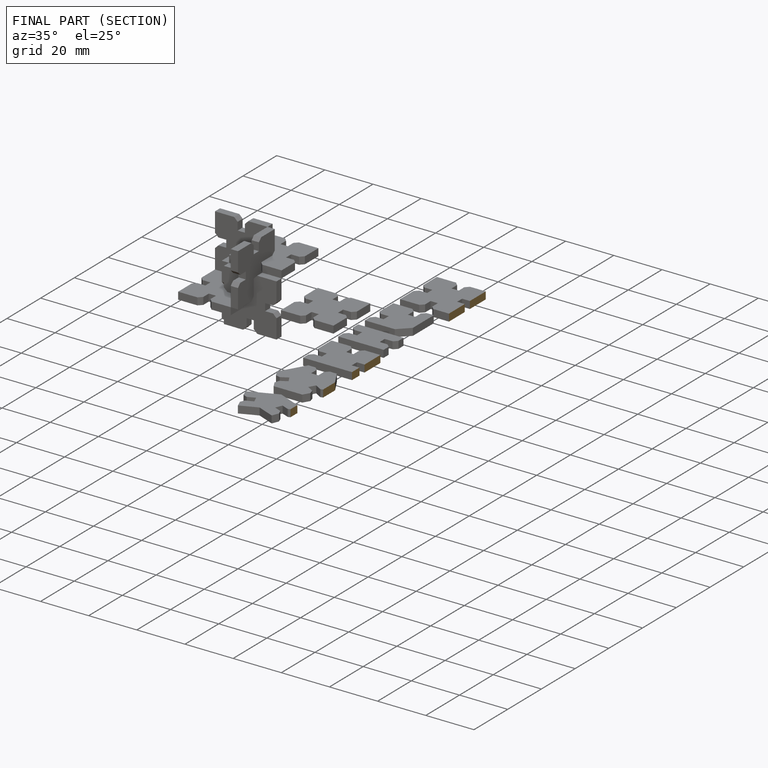
[diagram: finished part — half-section view (interior)]
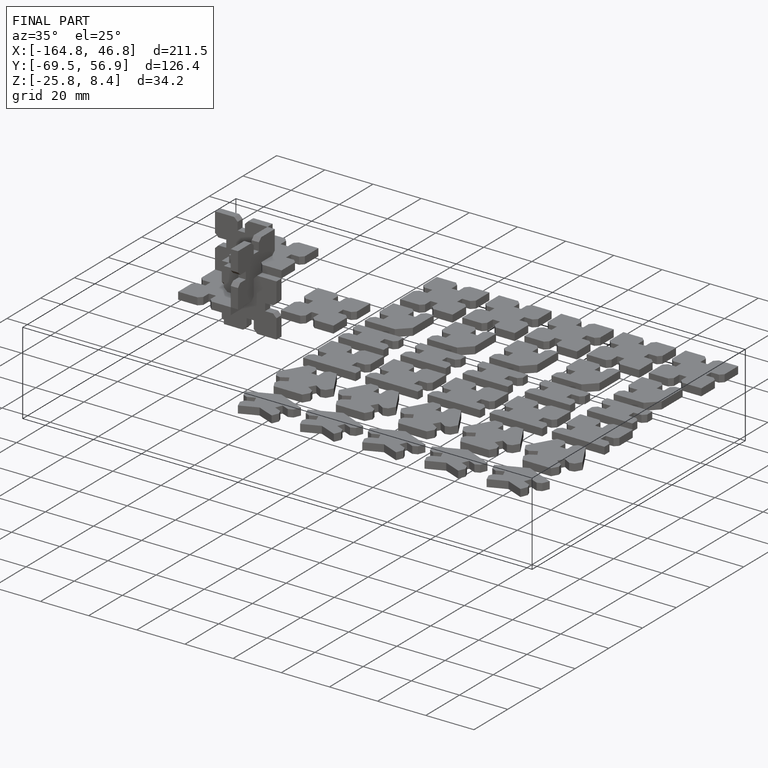
[diagram: finished part — iso view with bounding-box wireframe]
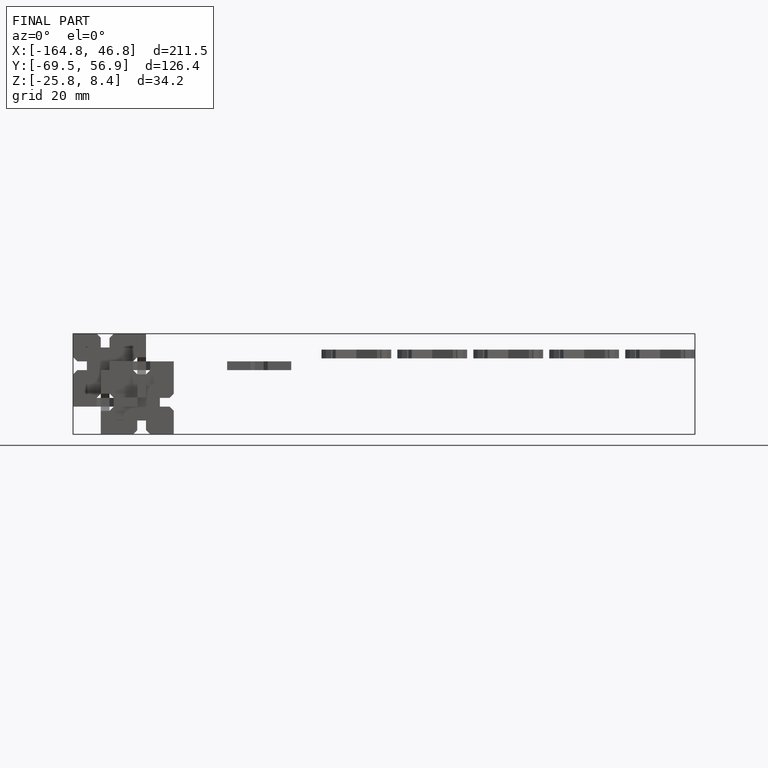
[diagram: finished part — front view with bounding-box wireframe]
